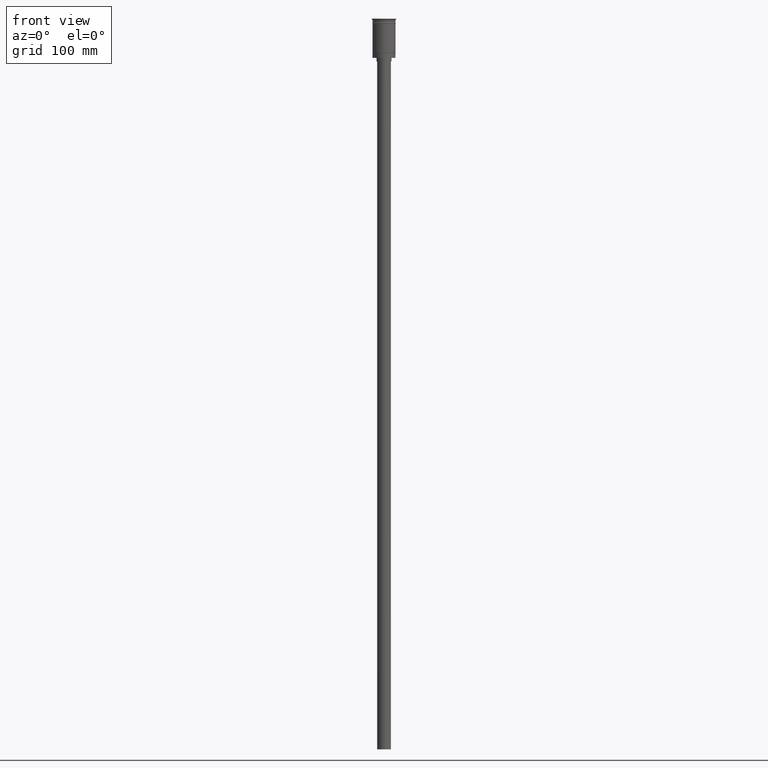
[diagram: clean part render]
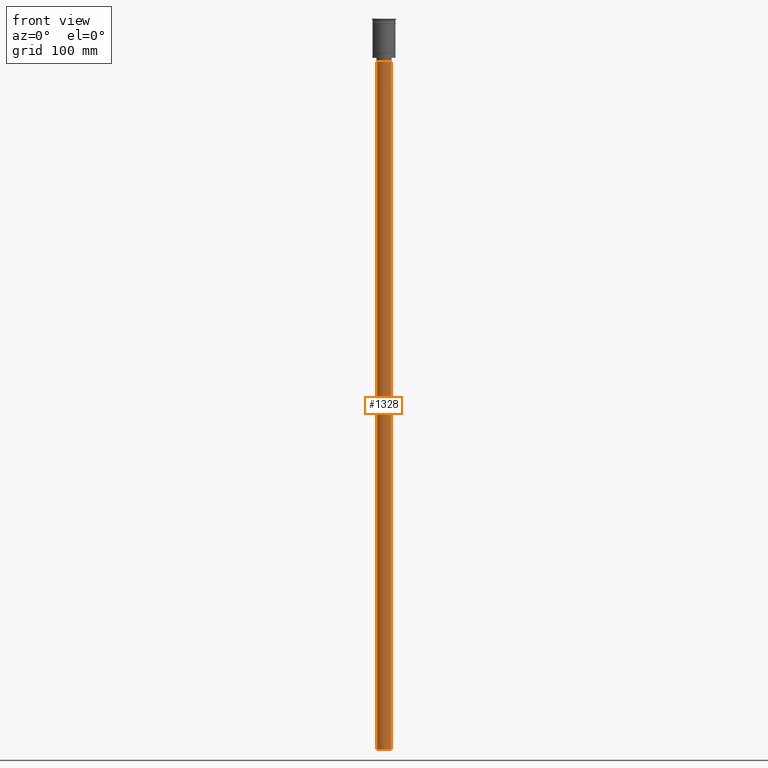
[diagram: same view with one face highlighted and labeled with its STEP entity id]
A machine part, front view. The second image highlights one B-rep face of the part: STEP entity #1328.
In plain terms, the highlighted cylindrical surface (edge-blend (fillet) strip) has radius 6 mm, axis along (-0, -0, 1).
Its self-contained STEP definition (entity closure, byte-faithful):
#24 = DIRECTION ( 'NONE',  ( -1.000000000000000000, 0.000000000000000000, 0.000000000000000000 ) ) ;
#103 = EDGE_CURVE ( 'NONE', #977, #114, #354, .T. ) ;
#114 = VERTEX_POINT ( 'NONE', #763 ) ;
#127 = LINE ( 'NONE', #145, #1128 ) ;
#145 = CARTESIAN_POINT ( 'NONE',  ( 6.000000000000000888, 0.000000000000000000, -634.0000000000000000 ) ) ;
#321 = VERTEX_POINT ( 'NONE', #1409 ) ;
#354 = LINE ( 'NONE', #486, #1215 ) ;
#399 = CARTESIAN_POINT ( 'NONE',  ( 0.000000000000000000, 0.000000000000000000, -37.00000000000000000 ) ) ;
#420 = AXIS2_PLACEMENT_3D ( 'NONE', #1055, #1199, #1558 ) ;
#433 = EDGE_CURVE ( 'NONE', #584, #977, #1048, .T. ) ;
#486 = CARTESIAN_POINT ( 'NONE',  ( -6.000000000000000888, 7.347880794884120722E-16, -634.0000000000000000 ) ) ;
#510 = DIRECTION ( 'NONE',  ( 1.000000000000000000, 0.000000000000000000, 0.000000000000000000 ) ) ;
#584 = VERTEX_POINT ( 'NONE', #1314 ) ;
#627 = DIRECTION ( 'NONE',  ( -0.000000000000000000, -0.000000000000000000, 1.000000000000000000 ) ) ;
#647 = ORIENTED_EDGE ( 'NONE', *, *, #1276, .T. ) ;
#745 = ORIENTED_EDGE ( 'NONE', *, *, #1268, .T. ) ;
#763 = CARTESIAN_POINT ( 'NONE',  ( -6.000000000000000888, 7.347880794884120722E-16, -37.00000000000000000 ) ) ;
#825 = ORIENTED_EDGE ( 'NONE', *, *, #103, .F. ) ;
#865 = AXIS2_PLACEMENT_3D ( 'NONE', #1381, #1120, #510 ) ;
#977 = VERTEX_POINT ( 'NONE', #1303 ) ;
#990 = DIRECTION ( 'NONE',  ( -0.000000000000000000, -0.000000000000000000, 1.000000000000000000 ) ) ;
#1021 = AXIS2_PLACEMENT_3D ( 'NONE', #399, #1507, #24 ) ;
#1048 = CIRCLE ( 'NONE', #420, 6.000000000000000888 ) ;
#1055 = CARTESIAN_POINT ( 'NONE',  ( 0.000000000000000000, 0.000000000000000000, -634.0000000000000000 ) ) ;
#1104 = EDGE_LOOP ( 'NONE', ( #825, #1235, #647, #745 ) ) ;
#1120 = DIRECTION ( 'NONE',  ( -0.000000000000000000, -0.000000000000000000, 1.000000000000000000 ) ) ;
#1128 = VECTOR ( 'NONE', #627, 1000.000000000000000 ) ;
#1199 = DIRECTION ( 'NONE',  ( 0.000000000000000000, 0.000000000000000000, -1.000000000000000000 ) ) ;
#1215 = VECTOR ( 'NONE', #990, 1000.000000000000000 ) ;
#1235 = ORIENTED_EDGE ( 'NONE', *, *, #433, .F. ) ;
#1240 = CIRCLE ( 'NONE', #1021, 6.000000000000000888 ) ;
#1266 = CYLINDRICAL_SURFACE ( 'NONE', #865, 6.000000000000000888 ) ;
#1268 = EDGE_CURVE ( 'NONE', #321, #114, #1240, .T. ) ;
#1276 = EDGE_CURVE ( 'NONE', #584, #321, #127, .T. ) ;
#1303 = CARTESIAN_POINT ( 'NONE',  ( -6.000000000000000888, 7.347880794884120722E-16, -634.0000000000000000 ) ) ;
#1314 = CARTESIAN_POINT ( 'NONE',  ( 6.000000000000000888, 0.000000000000000000, -634.0000000000000000 ) ) ;
#1328 = ADVANCED_FACE ( 'NONE', ( #1392 ), #1266, .T. ) ;
#1381 = CARTESIAN_POINT ( 'NONE',  ( 0.000000000000000000, 0.000000000000000000, -634.0000000000000000 ) ) ;
#1392 = FACE_OUTER_BOUND ( 'NONE', #1104, .T. ) ;
#1409 = CARTESIAN_POINT ( 'NONE',  ( 6.000000000000000888, 0.000000000000000000, -37.00000000000000000 ) ) ;
#1507 = DIRECTION ( 'NONE',  ( 0.000000000000000000, 0.000000000000000000, -1.000000000000000000 ) ) ;
#1558 = DIRECTION ( 'NONE',  ( -1.000000000000000000, 0.000000000000000000, 0.000000000000000000 ) ) ;